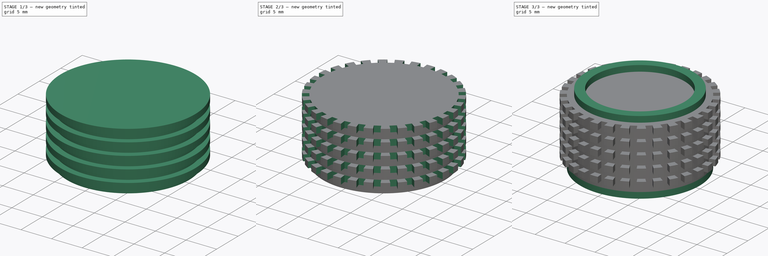
[diagram: build sequence overview — one tinted view per stage of 3, left to right]
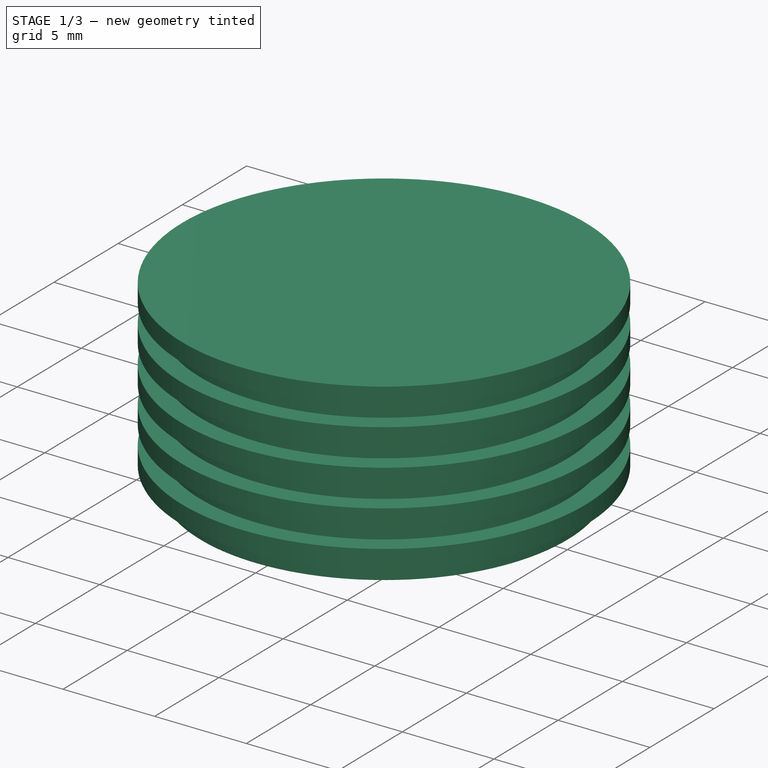
[diagram: stage 1 of 3 — iso view after this stage's code; geometry added in this stage tinted green]
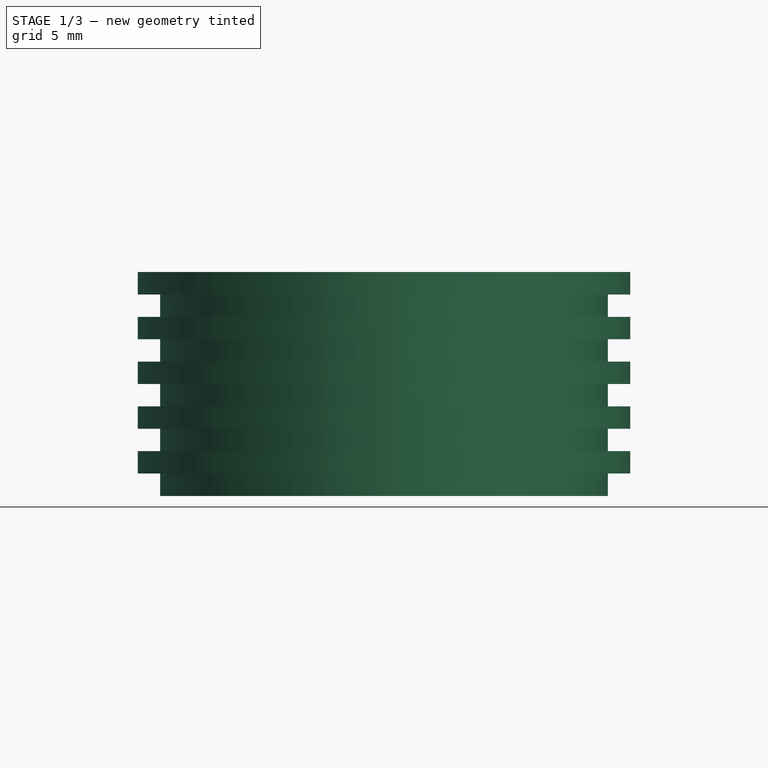
[diagram: stage 1 of 3 — front view after this stage's code; geometry added in this stage tinted green]
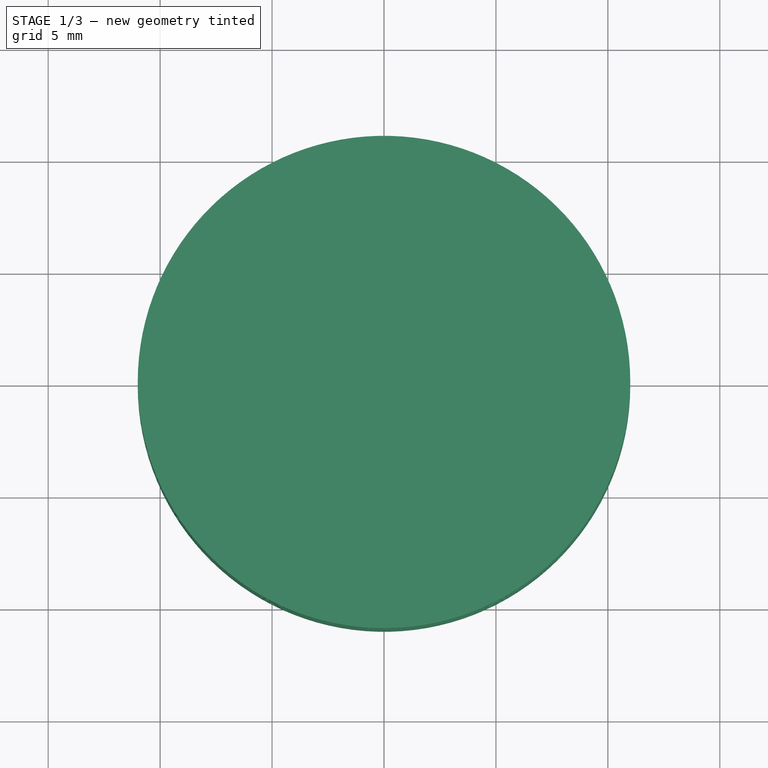
[diagram: stage 1 of 3 — top view after this stage's code; geometry added in this stage tinted green]
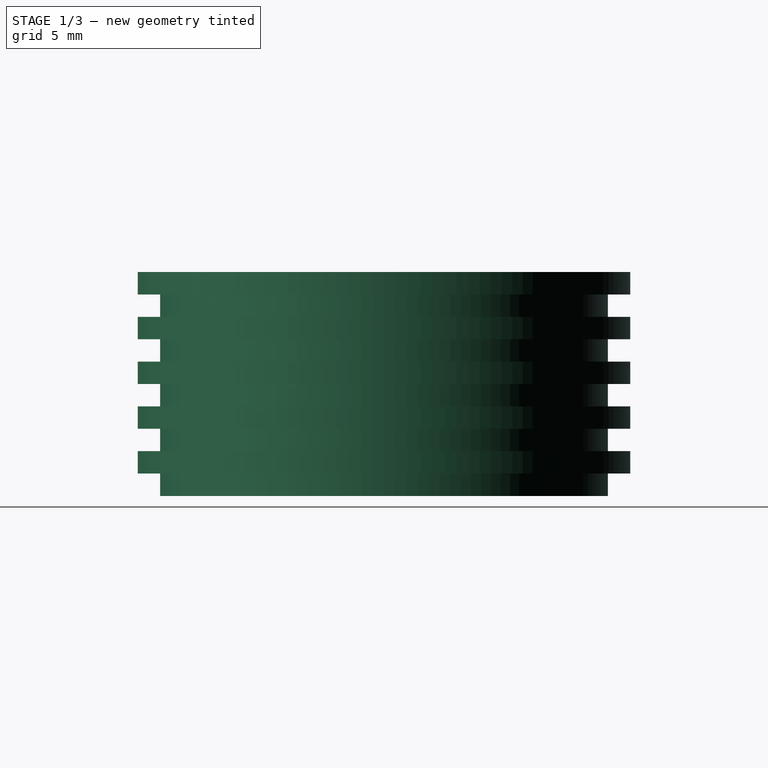
[diagram: stage 1 of 3 — right view after this stage's code; geometry added in this stage tinted green]
FCSTD DOCUMENT  (FreeCAD 0.20R29177 (Git))
Label: textured_knob
License: All rights reserved
LicenseURL: http://en.wikipedia.org/wiki/All_rights_reserved
objects: Sketcher::SketchObject×5, PartDesign::Pad×3, PartDesign::Revolution×1, PartDesign::Pocket×1, PartDesign::PolarPattern×1, PartDesign::Body×1
note: 17 computed .brp shape members not serialized (recipe doc carries the construction recipe); baked Part::Feature solids carry a one-line shape summary decoded from their .brp

FEATURE [Sketcher::SketchObject] Sketch
  FullyConstrained = true
  MapMode = 5
  Support = -> [XY_Plane001]
  sketch-geometry (1):
    g0: Circle CenterX=0 CenterY=0 CenterZ=0 NormalX=0 NormalY=0 NormalZ=1 AngleXU=0 Radius=10
  constraints (2):
    c: Coincident(g0,g-1)
    c: Diameter(g0) = 20
FEATURE [PartDesign::Pad] Pad
  Direction = (0,0,1)
  Length = 10
  Length2 = 10
  Profile = -> Sketch
  ReferenceAxis = -> Sketch [N_Axis]
  Type = 0
FEATURE [Sketcher::SketchObject] Sketch002
  FullyConstrained = true
  MapMode = 5
  Placement = pos=(0,0,0) rot=(1,0,0;1.5708rad)
  Support = -> [XZ_Plane001]
  sketch-geometry (22):
    g0: LineSegment StartX=11 StartY=10 StartZ=0 EndX=11 EndY=9 EndZ=0
    g1: LineSegment StartX=10 StartY=9 StartZ=0 EndX=10 EndY=8 EndZ=0
    g2: LineSegment StartX=0 StartY=10 StartZ=0 EndX=0 EndY=0 EndZ=0
    g3: LineSegment StartX=0 StartY=10 StartZ=0 EndX=11 EndY=10 EndZ=0
    g4: LineSegment StartX=10 StartY=9 StartZ=0 EndX=11 EndY=9 EndZ=0
    g5: LineSegment StartX=10 StartY=8 StartZ=0 EndX=11 EndY=8 EndZ=0
    g6: LineSegment StartX=11 StartY=8 StartZ=0 EndX=11 EndY=7 EndZ=0
    g7: LineSegment StartX=11 StartY=7 StartZ=0 EndX=10 EndY=7 EndZ=0
    g8: LineSegment StartX=10 StartY=7 StartZ=0 EndX=10 EndY=6 EndZ=0
    g9: LineSegment StartX=10 StartY=6 StartZ=0 EndX=11 EndY=6 EndZ=0
    g10: LineSegment StartX=11 StartY=6 StartZ=0 EndX=11 EndY=5 EndZ=0
    g11: LineSegment StartX=11 StartY=5 StartZ=0 EndX=10 EndY=5 EndZ=0
    g12: LineSegment StartX=10 StartY=5 StartZ=0 EndX=10 EndY=4 EndZ=0
    g13: LineSegment StartX=10 StartY=4 StartZ=0 EndX=11 EndY=4 EndZ=0
    g14: LineSegment StartX=11 StartY=4 StartZ=0 EndX=11 EndY=3 EndZ=0
    g15: LineSegment StartX=11 StartY=3 StartZ=0 EndX=10 EndY=3 EndZ=0
    g16: LineSegment StartX=10 StartY=3 StartZ=0 EndX=10 EndY=2 EndZ=0
    g17: LineSegment StartX=10 StartY=2 StartZ=0 EndX=11 EndY=2 EndZ=0
    g18: LineSegment StartX=11 StartY=2 StartZ=0 EndX=11 EndY=1 EndZ=0
    g19: LineSegment StartX=11 StartY=1 StartZ=0 EndX=10 EndY=1 EndZ=0
    g20: LineSegment StartX=10 StartY=1 StartZ=0 EndX=10 EndY=0 EndZ=0
    g21: LineSegment StartX=10 StartY=0 StartZ=0 EndX=0 EndY=0 EndZ=0
  constraints (66):
    c: Vertical(g0)
    c: Vertical(g1)
    c: PointOnObject(g2,g-2)
    c: Coincident(g3,g2)
    c: Coincident(g3,g0)
    c: Horizontal(g3)
    c: DistanceX(g3,g3) = 11
    c: Coincident(g4,g1)
    c: Coincident(g4,g0)
    c: Horizontal(g4)
    c: DistanceY(g1,g1) = 1
    c: DistanceY(g0,g0) = 1
    c: DistanceX(g4,g4) = 1
    c: DistanceY(g2,g2) = 10
    c: DistanceY(g2,g-1) = 0
    c: Coincident(g5,g1)
    c: Horizontal(g5)
    c: DistanceX(g5,g5) = 1
    c: Coincident(g6,g5)
    c: Vertical(g6)
    c: DistanceY(g6,g6) = 1
    c: Coincident(g7,g6)
    c: Horizontal(g7)
    c: DistanceX(g7,g7) = 1
    c: Coincident(g8,g7)
    c: Vertical(g8)
    c: DistanceY(g8,g8) = 1
    c: Coincident(g9,g8)
    c: Horizontal(g9)
    c: DistanceX(g9,g9) = 1
    c: Coincident(g10,g9)
    c: Vertical(g10)
    c: Coincident(g11,g10)
    c: Horizontal(g11)
    c: DistanceY(g10,g10) = 1
    c: DistanceX(g11,g11) = 1
    c: Coincident(g12,g11)
    c: Vertical(g12)
    c: DistanceY(g12,g12) = 1
    c: Coincident(g13,g12)
    c: Horizontal(g13)
    c: DistanceX(g13,g13) = 1
    c: Coincident(g14,g13)
    c: Vertical(g14)
    c: DistanceY(g14,g14) = 1
    c: Coincident(g15,g14)
    c: Horizontal(g15)
    c: DistanceX(g15,g15) = 1
    c: Coincident(g16,g15)
    c: Vertical(g16)
    c: DistanceY(g16,g16) = 1
    c: Coincident(g17,g16)
    c: Horizontal(g17)
    c: DistanceX(g17,g17) = 1
    c: Coincident(g18,g17)
    c: Vertical(g18)
    c: DistanceY(g18,g18) = 1
    c: Coincident(g19,g18)
    c: Horizontal(g19)
    c: DistanceX(g19,g19) = 1
    c: Coincident(g20,g19)
    c: DistanceY(g20,g20) = 1
    c: Coincident(g21,g20)
    c: Coincident(g21,g2)
    c: Angle(g21,g2) = 1.5708
    c: Angle(g20,g21) = 1.5708
FEATURE [PartDesign::Revolution] Revolution
  Angle = 360
  Axis = (0,-2e-16,1)
  Base = (0,0,0)
  BaseFeature = -> Pad
  Profile = -> Sketch002
  ReferenceAxis = -> Sketch002 [V_Axis]
  Reversed = true
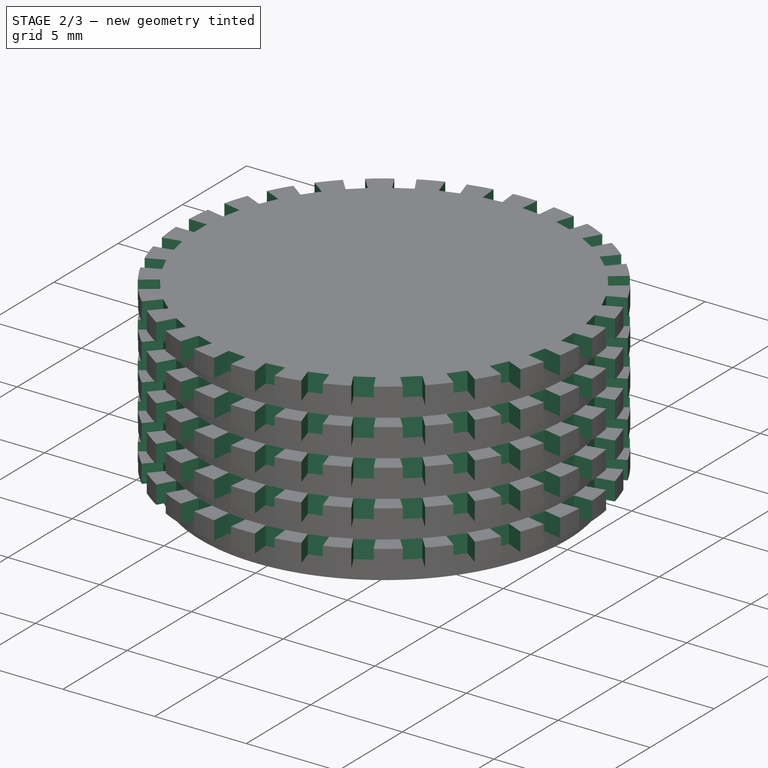
[diagram: stage 2 of 3 — iso view after this stage's code; geometry added in this stage tinted green]
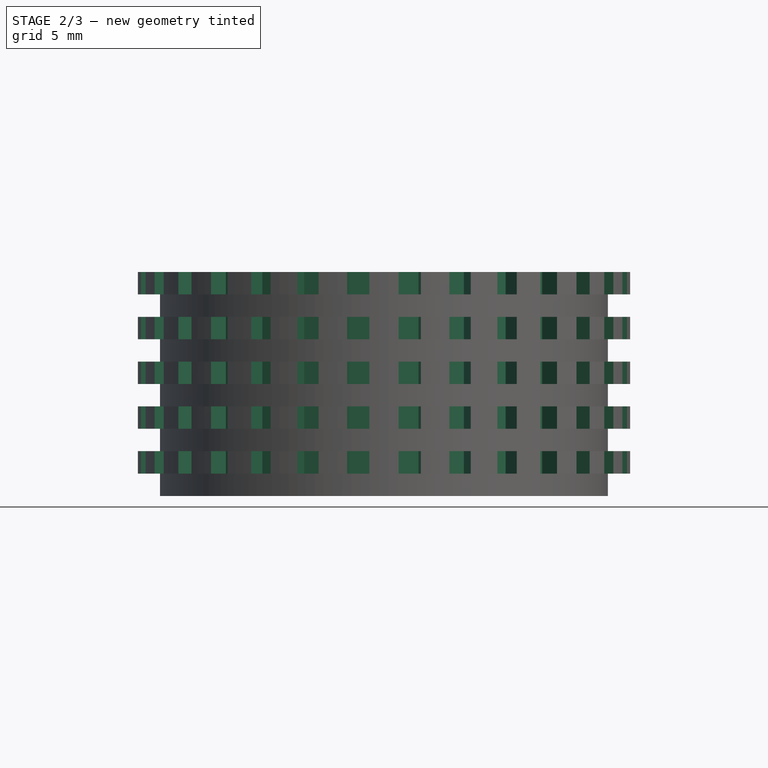
[diagram: stage 2 of 3 — front view after this stage's code; geometry added in this stage tinted green]
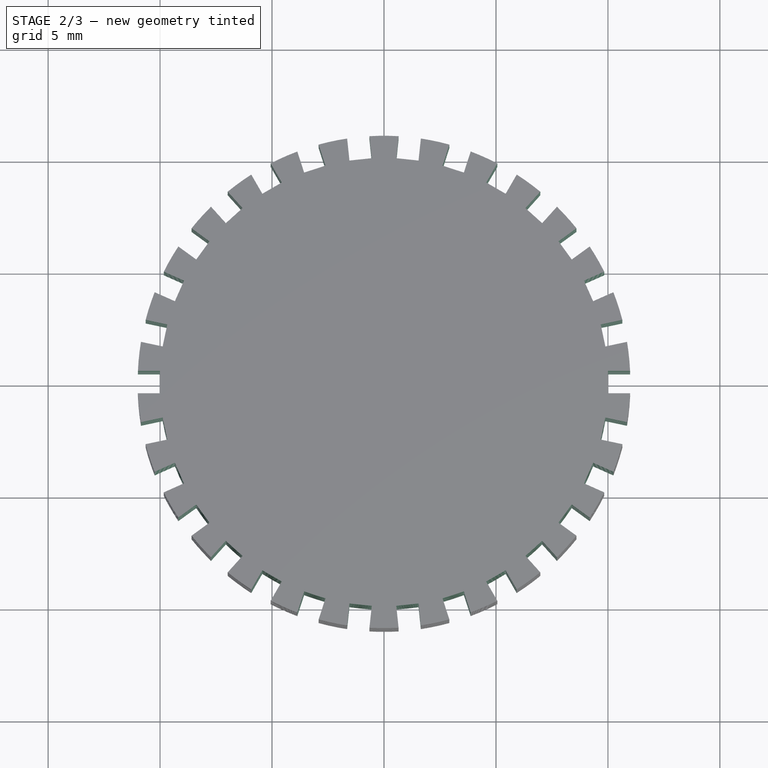
[diagram: stage 2 of 3 — top view after this stage's code; geometry added in this stage tinted green]
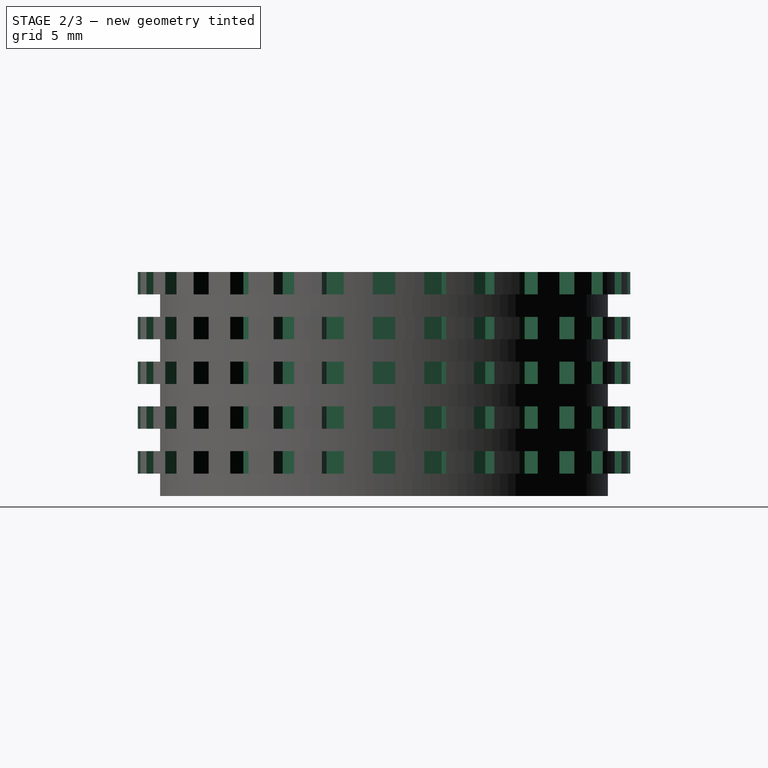
[diagram: stage 2 of 3 — right view after this stage's code; geometry added in this stage tinted green]
FEATURE [Sketcher::SketchObject] Sketch003
  FullyConstrained = true
  MapMode = 5
  Placement = pos=(0,0,10) rot=(0,0,1;0rad)
  Support = -> [Revolution]
  sketch-geometry (4):
    g0: LineSegment StartX=-11 StartY=-0.5 StartZ=0 EndX=-10 EndY=-0.5 EndZ=0
    g1: LineSegment StartX=-10 StartY=-0.5 StartZ=0 EndX=-10 EndY=0.5 EndZ=0
    g2: LineSegment StartX=-10 StartY=0.5 StartZ=0 EndX=-11 EndY=0.5 EndZ=0
    g3: LineSegment StartX=-11 StartY=0.5 StartZ=0 EndX=-11 EndY=-0.5 EndZ=0
  constraints (12):
    c: Coincident(g0,g1)
    c: Coincident(g1,g2)
    c: Coincident(g2,g3)
    c: Coincident(g3,g0)
    c: Horizontal(g0)
    c: Horizontal(g2)
    c: Vertical(g1)
    c: Vertical(g3)
    c: DistanceX(g0,g-1) = 10
    c: DistanceY(g3,g3) = 1
    c: DistanceX(g2,g2) = 1
    c: DistanceY(g0,g-1) = 0.5
FEATURE [PartDesign::Pocket] Pocket
  BaseFeature = -> Revolution
  Direction = (0,0,-1)
  Length = 100
  Length2 = 5
  Profile = -> Sketch003
  ReferenceAxis = -> Sketch003 [N_Axis]
  Type = 0
FEATURE [PartDesign::PolarPattern] PolarPattern
  Angle = 360
  Axis = -> Sketch003 [N_Axis]
  BaseFeature = -> Pocket
  Occurrences = 30
  Originals = -> [Pocket]
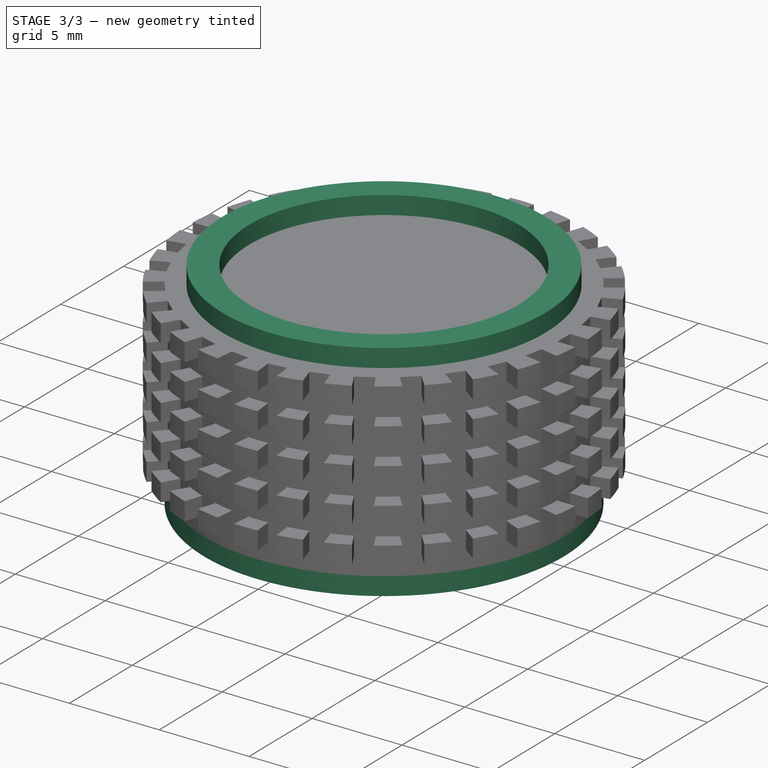
[diagram: stage 3 of 3 — iso view after this stage's code; geometry added in this stage tinted green]
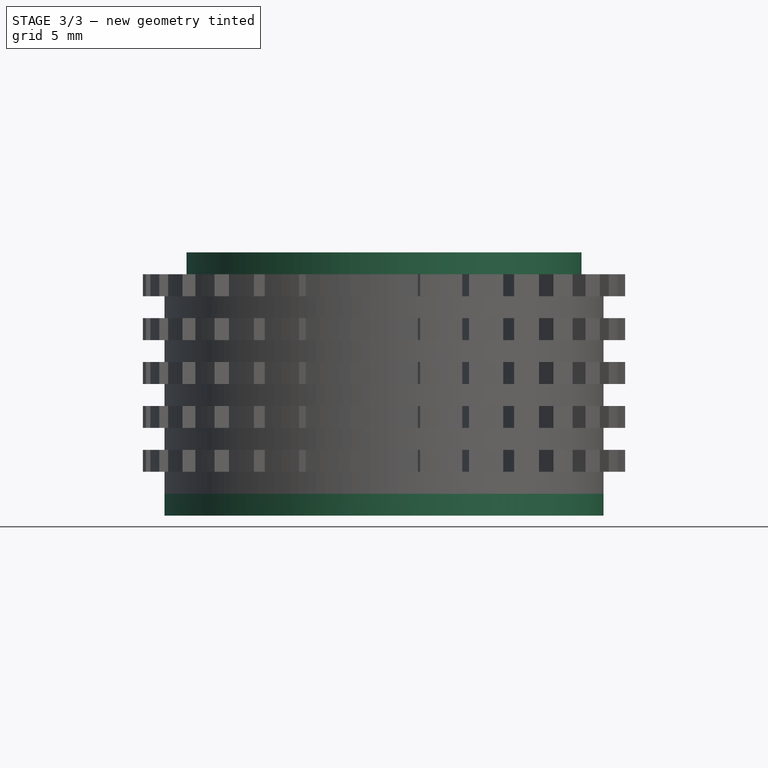
[diagram: stage 3 of 3 — front view after this stage's code; geometry added in this stage tinted green]
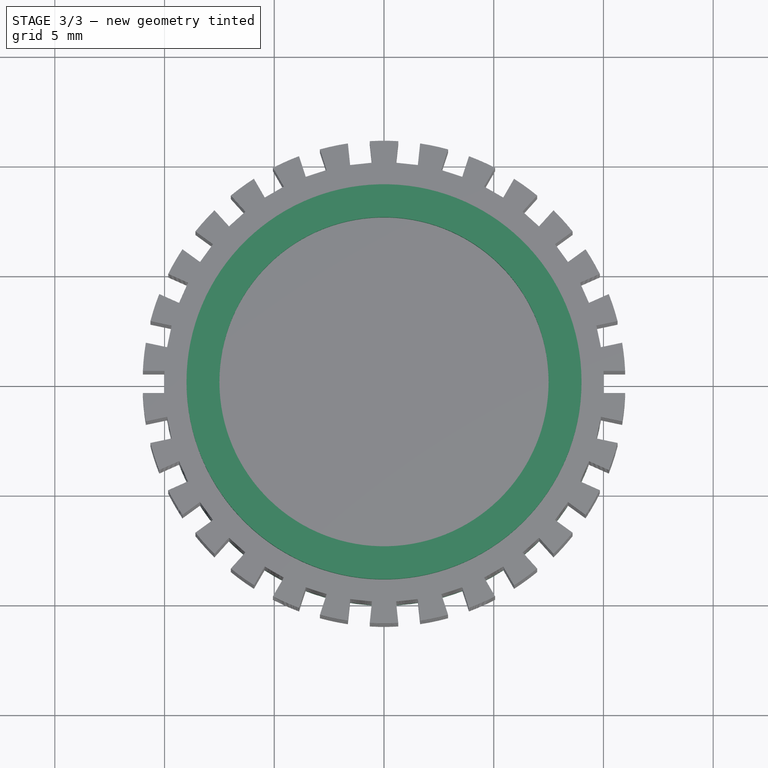
[diagram: stage 3 of 3 — top view after this stage's code; geometry added in this stage tinted green]
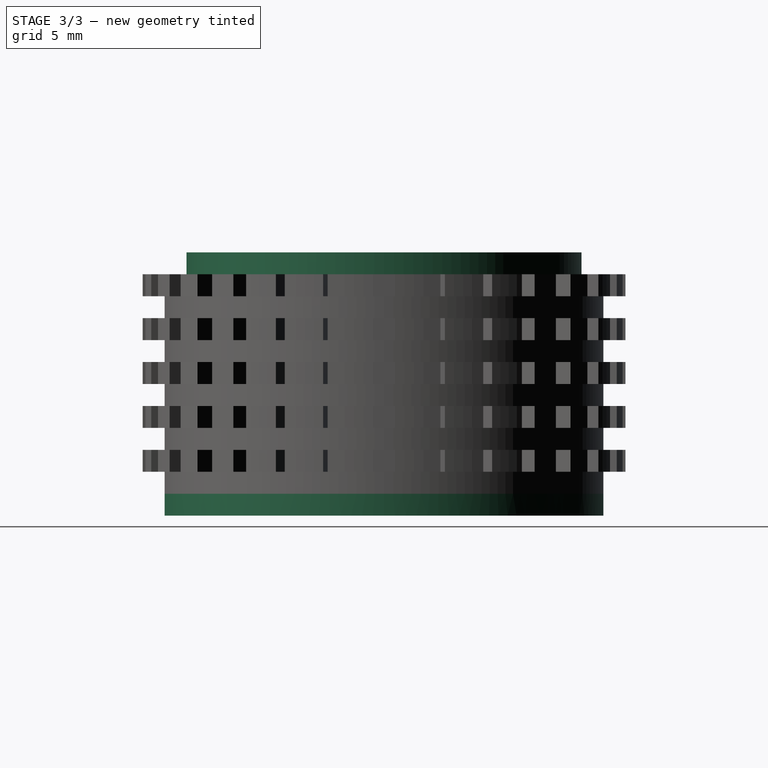
[diagram: stage 3 of 3 — right view after this stage's code; geometry added in this stage tinted green]
FEATURE [Sketcher::SketchObject] Sketch004
  FullyConstrained = true
  MapMode = 5
  Placement = pos=(0,0,10) rot=(0,0,1;0rad)
  Support = -> [PolarPattern]
  sketch-geometry (2):
    g0: Circle CenterX=0 CenterY=0 CenterZ=0 NormalX=0 NormalY=0 NormalZ=1 AngleXU=0 Radius=9
    g1: Circle CenterX=0 CenterY=0 CenterZ=0 NormalX=0 NormalY=0 NormalZ=1 AngleXU=0 Radius=7.5
  constraints (4):
    c: Coincident(g0,g-1)
    c: Diameter(g0) = 18
    c: Coincident(g1,g0)
    c: Diameter(g1) = 15
FEATURE [PartDesign::Pad] Pad001
  BaseFeature = -> PolarPattern
  Direction = (0,0,1)
  Length = 1
  Length2 = 10
  Profile = -> Sketch004
  ReferenceAxis = -> Sketch004 [N_Axis]
  Type = 0
FEATURE [Sketcher::SketchObject] Sketch005
  FullyConstrained = true
  MapMode = 5
  Placement = pos=(0,0,0) rot=(1,0,0;3.14159rad)
  Support = -> [Pad001]
  sketch-geometry (1):
    g0: Circle CenterX=0 CenterY=0 CenterZ=0 NormalX=0 NormalY=0 NormalZ=1 AngleXU=0 Radius=10
  constraints (2):
    c: Coincident(g0,g-1)
    c: Diameter(g0) = 20
FEATURE [PartDesign::Pad] Pad002
  BaseFeature = -> Pad001
  Direction = (0,0,-1)
  Length = 1
  Length2 = 10
  Profile = -> Sketch005
  ReferenceAxis = -> Sketch005 [N_Axis]
  Type = 0
FEATURE [PartDesign::Body] Body001
  Group = -> [Sketch,Pad,Sketch002,Revolution,Sketch003,Pocket,PolarPattern,Sketch004,Pad001,Sketch005,Pad002]
  Origin = -> Origin001
  Tip = -> Pad002
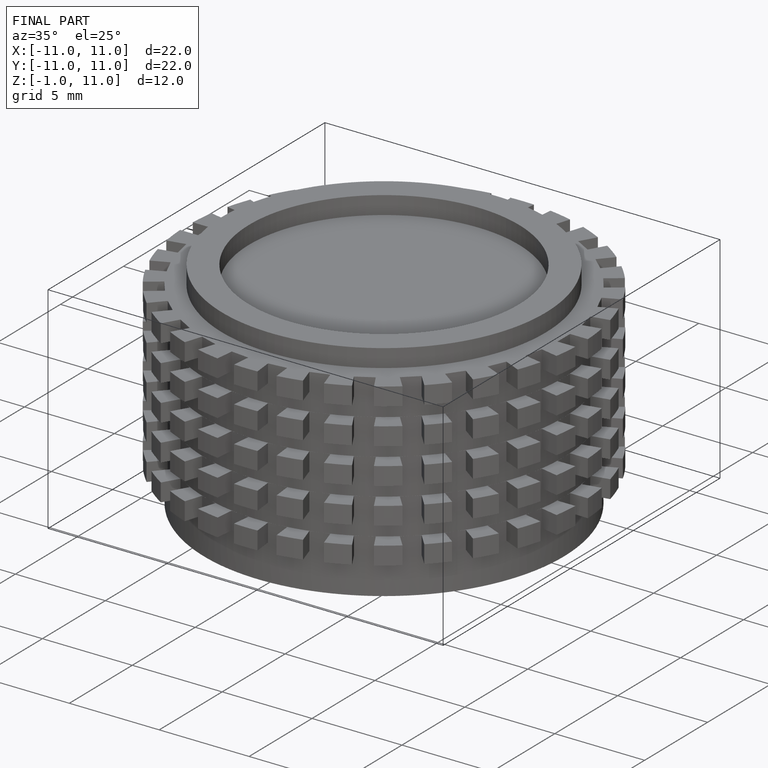
[diagram: finished part — iso view with bounding-box wireframe]
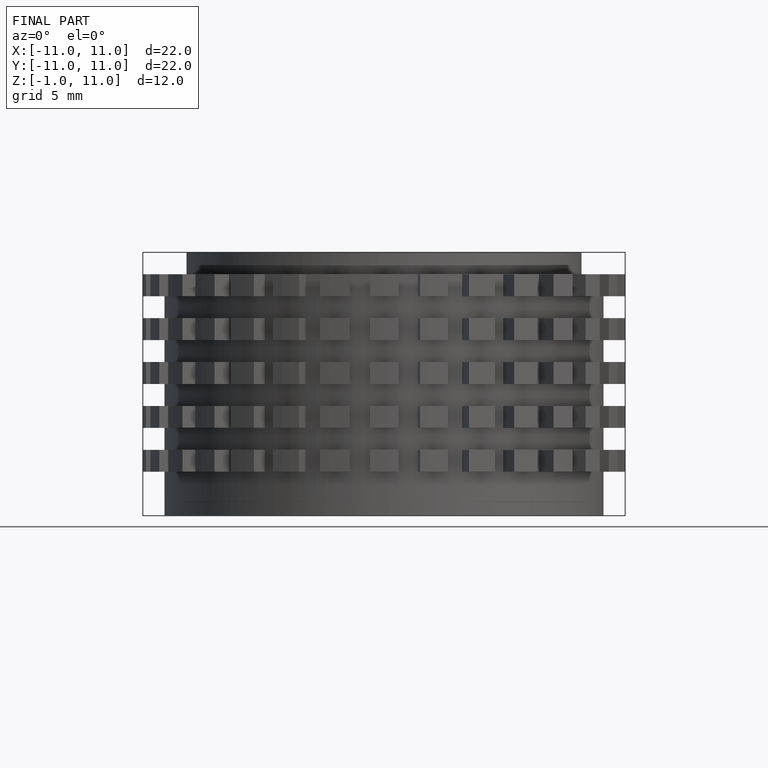
[diagram: finished part — front view with bounding-box wireframe]
